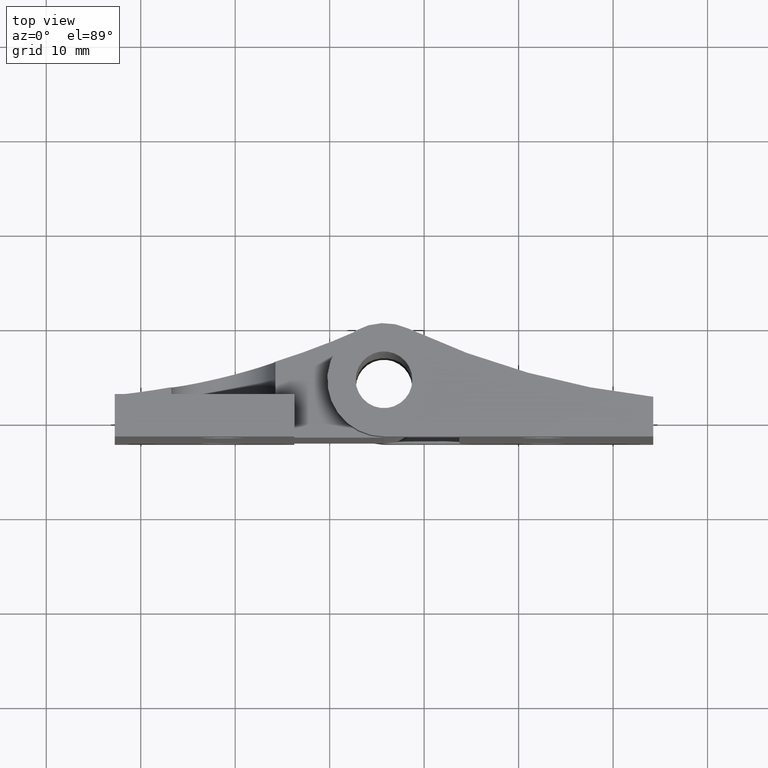
[diagram: clean part render]
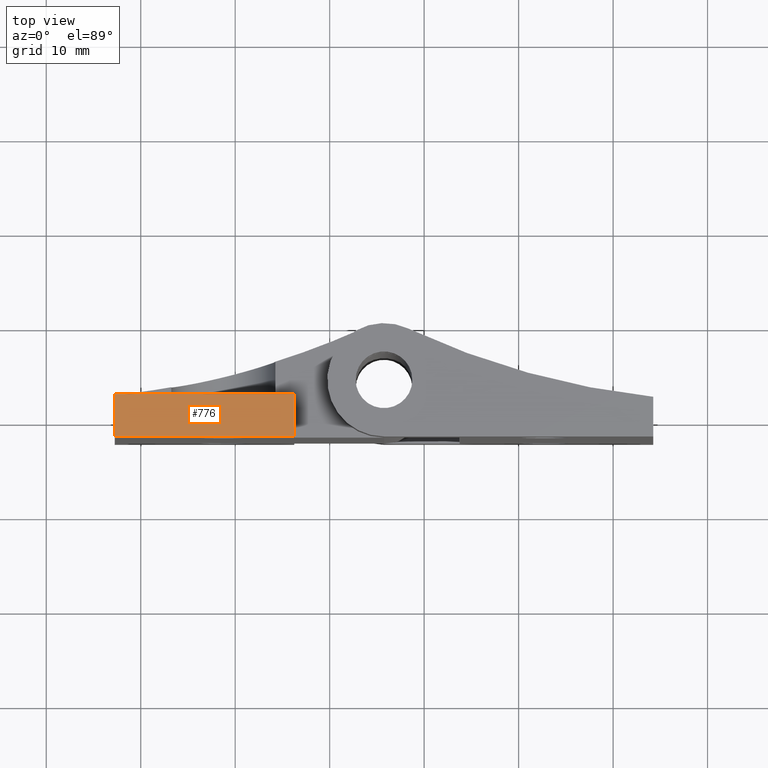
[diagram: same view with one face highlighted and labeled with its STEP entity id]
A machine part, top view. The second image highlights one B-rep face of the part: STEP entity #776.
In plain terms, the highlighted planar face has unit normal (-0, -0, -1).
Its self-contained STEP definition (entity closure, byte-faithful):
#72=PLANE('',#861);
#114=FACE_OUTER_BOUND('',#178,.T.);
#178=EDGE_LOOP('',(#705,#706,#707,#708));
#259=LINE('',#1319,#319);
#277=LINE('',#1377,#337);
#280=LINE('',#1382,#340);
#282=LINE('',#1385,#342);
#319=VECTOR('',#1017,18.9999999999991);
#337=VECTOR('',#1079,4.49999999999999);
#340=VECTOR('',#1084,18.9999999999991);
#342=VECTOR('',#1088,4.5);
#392=VERTEX_POINT('',#1316);
#393=VERTEX_POINT('',#1318);
#411=VERTEX_POINT('',#1376);
#412=VERTEX_POINT('',#1381);
#481=EDGE_CURVE('',#393,#392,#259,.T.);
#509=EDGE_CURVE('',#411,#393,#277,.T.);
#512=EDGE_CURVE('',#412,#411,#280,.T.);
#514=EDGE_CURVE('',#392,#412,#282,.T.);
#705=ORIENTED_EDGE('',*,*,#481,.T.);
#706=ORIENTED_EDGE('',*,*,#514,.T.);
#707=ORIENTED_EDGE('',*,*,#512,.T.);
#708=ORIENTED_EDGE('',*,*,#509,.T.);
#776=ADVANCED_FACE('',(#114),#72,.F.);
#861=AXIS2_PLACEMENT_3D('',#1384,#1086,#1087);
#1017=DIRECTION('',(1.,2.62947558463865E-16,0.));
#1079=DIRECTION('',(0.,1.,0.));
#1084=DIRECTION('',(-1.,5.84327907697469E-17,0.));
#1086=DIRECTION('center_axis',(0.,0.,1.));
#1087=DIRECTION('ref_axis',(1.,0.,0.));
#1088=DIRECTION('',(4.93432455388958E-16,-1.,0.));
#1316=CARTESIAN_POINT('',(14.2499999999995,2.25,-25.5));
#1318=CARTESIAN_POINT('',(-4.74999999999955,2.25,-25.5));
#1319=CARTESIAN_POINT('',(-3.77969799170987,2.25,-25.5));
#1376=CARTESIAN_POINT('',(-4.74999999999955,-2.25,-25.5));
#1377=CARTESIAN_POINT('',(-4.74999999999955,5.66540650874745,-25.5));
#1381=CARTESIAN_POINT('',(14.2499999999995,-2.25,-25.5));
#1382=CARTESIAN_POINT('',(-14.2499999999995,-2.25,-25.5));
#1384=CARTESIAN_POINT('Origin',(-2.80939598342019,1.58081301749489,-25.5));
#1385=CARTESIAN_POINT('',(14.2499999999995,-2.25,-25.5));